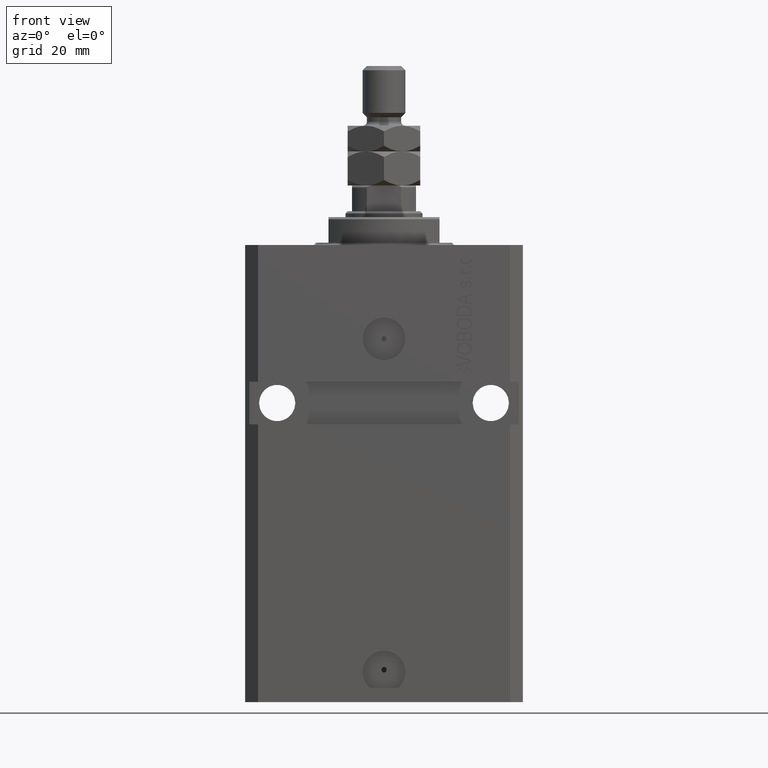
[diagram: clean part render]
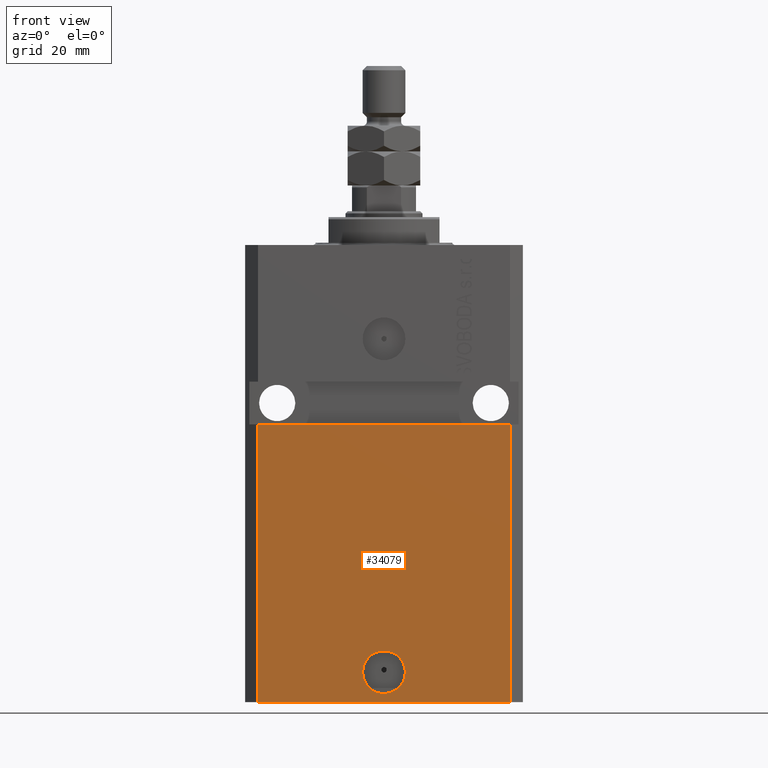
[diagram: same view with one face highlighted and labeled with its STEP entity id]
A machine part, front view. The second image highlights one B-rep face of the part: STEP entity #34079.
In plain terms, the highlighted planar face has unit normal (0, -1, 0).
Its self-contained STEP definition (entity closure, byte-faithful):
#848 = CARTESIAN_POINT ( 'NONE',  ( 29.49999999999650413, -22.49999999999949196, -107.0000000000000000 ) ) ;
#1040 = EDGE_CURVE ( 'NONE', #32405, #30649, #47279, .T. ) ;
#1787 = ORIENTED_EDGE ( 'NONE', *, *, #48919, .F. ) ;
#1788 = ORIENTED_EDGE ( 'NONE', *, *, #39235, .F. ) ;
#2168 = AXIS2_PLACEMENT_3D ( 'NONE', #10236, #13483, #28926 ) ;
#2172 = CARTESIAN_POINT ( 'NONE',  ( 29.49999999999650413, -22.49999999999949196, -107.0000000000000000 ) ) ;
#2872 = PLANE ( 'NONE',  #12463 ) ;
#3032 = VECTOR ( 'NONE', #15204, 1000.000000000000000 ) ;
#3348 = VERTEX_POINT ( 'NONE', #7366 ) ;
#4140 = DIRECTION ( 'NONE',  ( 1.176083712526788232E-16, -1.000000000000000000, 0.000000000000000000 ) ) ;
#6365 = CARTESIAN_POINT ( 'NONE',  ( -29.49999999999650413, -22.49999999999949907, -107.0000000000000000 ) ) ;
#6405 = DIRECTION ( 'NONE',  ( 0.000000000000000000, 0.000000000000000000, 1.000000000000000000 ) ) ;
#7366 = CARTESIAN_POINT ( 'NONE',  ( -5.000000000000003553, -22.49999999999949551, -99.99999999999998579 ) ) ;
#7775 = EDGE_CURVE ( 'NONE', #12506, #18760, #37401, .T. ) ;
#10056 = CARTESIAN_POINT ( 'NONE',  ( -29.49999999999650413, -22.49999999999949907, -107.0000000000000000 ) ) ;
#10071 = FACE_OUTER_BOUND ( 'NONE', #13221, .T. ) ;
#10236 = CARTESIAN_POINT ( 'NONE',  ( 2.646188353185214061E-15, -22.49999999999949551, -99.99999999999998579 ) ) ;
#12463 = AXIS2_PLACEMENT_3D ( 'NONE', #6365, #18048, #48214 ) ;
#12506 = VERTEX_POINT ( 'NONE', #23812 ) ;
#13221 = EDGE_LOOP ( 'NONE', ( #32304, #30310, #27763, #27205 ) ) ;
#13483 = DIRECTION ( 'NONE',  ( 1.176083712526788232E-16, -1.000000000000000000, 0.000000000000000000 ) ) ;
#13793 = DIRECTION ( 'NONE',  ( 0.000000000000000000, 0.000000000000000000, 1.000000000000000000 ) ) ;
#15204 = DIRECTION ( 'NONE',  ( 1.000000000000000000, 1.176083712526788232E-16, 0.000000000000000000 ) ) ;
#16455 = CARTESIAN_POINT ( 'NONE',  ( 29.49999999999650058, -22.49999999999949196, -41.99999999999998579 ) ) ;
#18048 = DIRECTION ( 'NONE',  ( 1.176083712526788232E-16, -1.000000000000000000, 0.000000000000000000 ) ) ;
#18449 = LINE ( 'NONE', #33137, #3032 ) ;
#18760 = VERTEX_POINT ( 'NONE', #47579 ) ;
#18823 = DIRECTION ( 'NONE',  ( 1.000000000000000000, 0.000000000000000000, 0.000000000000000000 ) ) ;
#19775 = LINE ( 'NONE', #23019, #29248 ) ;
#23019 = CARTESIAN_POINT ( 'NONE',  ( -32.49999999999650413, -22.49999999999949907, -41.99999999999999289 ) ) ;
#23812 = CARTESIAN_POINT ( 'NONE',  ( -29.49999999999650413, -22.49999999999949907, -107.0000000000000000 ) ) ;
#24215 = EDGE_LOOP ( 'NONE', ( #1788, #1787 ) ) ;
#26113 = VECTOR ( 'NONE', #6405, 1000.000000000000000 ) ;
#27205 = ORIENTED_EDGE ( 'NONE', *, *, #1040, .T. ) ;
#27763 = ORIENTED_EDGE ( 'NONE', *, *, #36673, .T. ) ;
#28926 = DIRECTION ( 'NONE',  ( 1.000000000000000000, 0.000000000000000000, 0.000000000000000000 ) ) ;
#29248 = VECTOR ( 'NONE', #37965, 1000.000000000000000 ) ;
#30019 = CARTESIAN_POINT ( 'NONE',  ( 2.646188353185214061E-15, -22.49999999999949551, -99.99999999999998579 ) ) ;
#30310 = ORIENTED_EDGE ( 'NONE', *, *, #7775, .F. ) ;
#30649 = VERTEX_POINT ( 'NONE', #16455 ) ;
#32304 = ORIENTED_EDGE ( 'NONE', *, *, #40338, .F. ) ;
#32405 = VERTEX_POINT ( 'NONE', #848 ) ;
#33137 = CARTESIAN_POINT ( 'NONE',  ( -29.49999999999650413, -22.49999999999949907, -107.0000000000000000 ) ) ;
#33552 = AXIS2_PLACEMENT_3D ( 'NONE', #30019, #4140, #18823 ) ;
#34079 = ADVANCED_FACE ( 'NONE', ( #36990, #10071 ), #2872, .T. ) ;
#35172 = CIRCLE ( 'NONE', #33552, 5.000000000000006217 ) ;
#36276 = CARTESIAN_POINT ( 'NONE',  ( 5.000000000000008882, -22.49999999999949551, -99.99999999999998579 ) ) ;
#36673 = EDGE_CURVE ( 'NONE', #12506, #32405, #18449, .T. ) ;
#36990 = FACE_BOUND ( 'NONE', #24215, .T. ) ;
#37202 = VERTEX_POINT ( 'NONE', #36276 ) ;
#37401 = LINE ( 'NONE', #10056, #42308 ) ;
#37965 = DIRECTION ( 'NONE',  ( 1.000000000000000000, 1.067522139062765303E-16, 1.067522139062765303E-16 ) ) ;
#39235 = EDGE_CURVE ( 'NONE', #37202, #3348, #46752, .T. ) ;
#40338 = EDGE_CURVE ( 'NONE', #18760, #30649, #19775, .T. ) ;
#42308 = VECTOR ( 'NONE', #13793, 1000.000000000000000 ) ;
#46752 = CIRCLE ( 'NONE', #2168, 5.000000000000006217 ) ;
#47279 = LINE ( 'NONE', #2172, #26113 ) ;
#47579 = CARTESIAN_POINT ( 'NONE',  ( -29.49999999999650413, -22.49999999999949907, -41.99999999999999289 ) ) ;
#48214 = DIRECTION ( 'NONE',  ( 1.000000000000000000, 1.176083712526788232E-16, 0.000000000000000000 ) ) ;
#48919 = EDGE_CURVE ( 'NONE', #3348, #37202, #35172, .T. ) ;